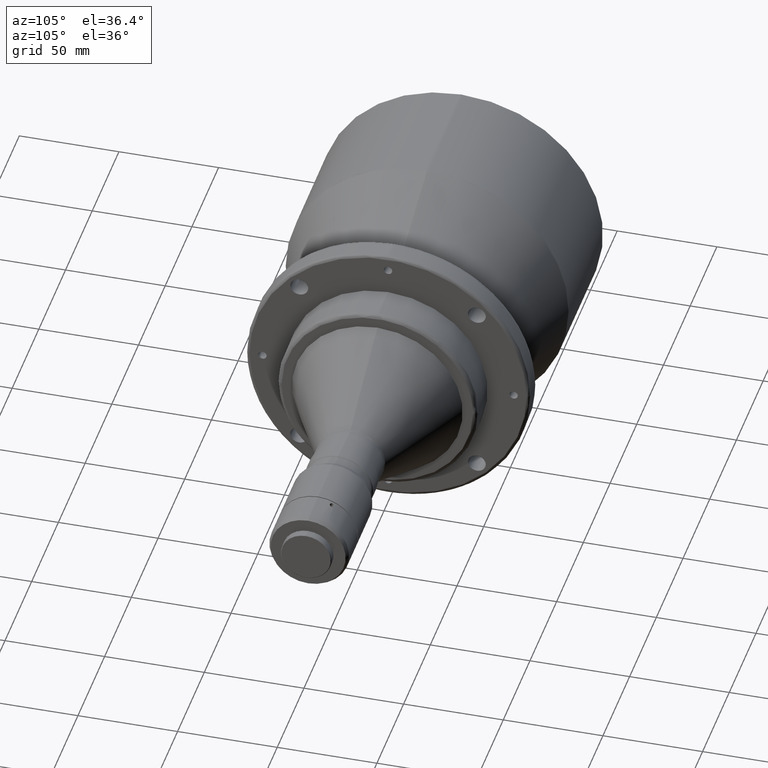
[diagram: clean part render]
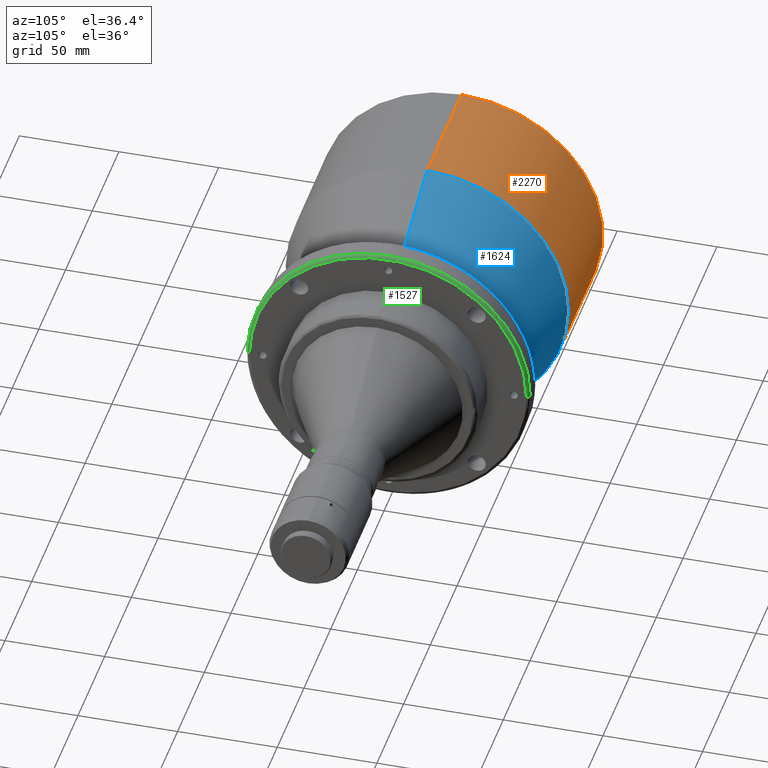
[diagram: same view with three faces highlighted in distinct colors, each labeled with its STEP entity id]
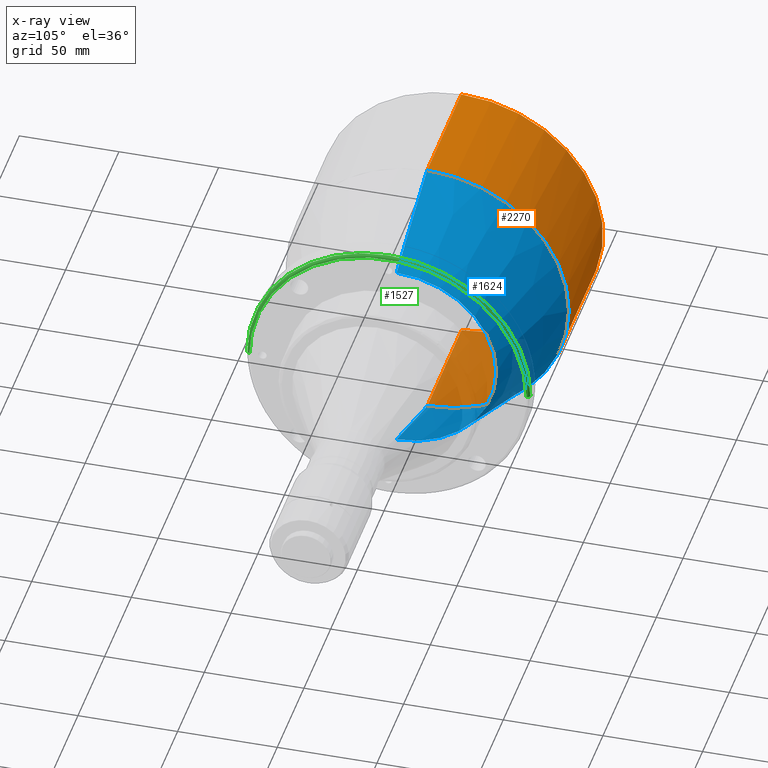
[diagram: x-ray of the same camera — body ghosted, the three highlighted faces saturated]
A machine part, auxiliary view with three faces highlighted in distinct colors.
The next image is the same camera in x-ray (body ghosted, the three faces saturated) — at least one of them is partly hidden behind the body in this view.
Their STEP definitions:

[orange] entity #2270 — the highlighted cylindrical surface (partial cylindrical patch) has radius 71 mm, axis along (1, 0, -0).
#47 = ORIENTED_EDGE ( 'NONE', *, *, #2451, .F. ) ;
#65 = CIRCLE ( 'NONE', #2495, 70.99999999999980100 ) ;
#147 = AXIS2_PLACEMENT_3D ( 'NONE', #4120, #3049, #3019 ) ;
#208 = CARTESIAN_POINT ( 'NONE',  ( -145.0500000000000100, 0.0000000000000000000, 0.0000000000000000000 ) ) ;
#415 = CIRCLE ( 'NONE', #147, 71.00000000000001400 ) ;
#449 = CARTESIAN_POINT ( 'NONE',  ( -145.0500000000000100, 8.694992273946208100E-015, 71.00000000000001400 ) ) ;
#552 = CARTESIAN_POINT ( 'NONE',  ( -145.0500000000000100, 8.694992273946208100E-015, 71.00000000000001400 ) ) ;
#571 = VECTOR ( 'NONE', #1230, 1000.000000000000000 ) ;
#643 = VERTEX_POINT ( 'NONE', #449 ) ;
#644 = CARTESIAN_POINT ( 'NONE',  ( -81.04632698077006100, 70.99999999999992900, -6.375347618440046200E-009 ) ) ;
#761 = ORIENTED_EDGE ( 'NONE', *, *, #3431, .F. ) ;
#786 = ORIENTED_EDGE ( 'NONE', *, *, #1321, .T. ) ;
#1014 = DIRECTION ( 'NONE',  ( 1.000000000000000000, 0.0000000000000000000, -0.0000000000000000000 ) ) ;
#1203 = CARTESIAN_POINT ( 'NONE',  ( -145.0500000000000100, 0.0000000000000000000, -71.00000000000001400 ) ) ;
#1212 = LINE ( 'NONE', #3522, #4212 ) ;
#1230 = DIRECTION ( 'NONE',  ( 1.000000000000000000, 0.0000000000000000000, -0.0000000000000000000 ) ) ;
#1321 = EDGE_CURVE ( 'NONE', #643, #2931, #1595, .T. ) ;
#1363 = EDGE_CURVE ( 'NONE', #2990, #2509, #65, .T. ) ;
#1540 = FACE_OUTER_BOUND ( 'NONE', #3349, .T. ) ;
#1551 = DIRECTION ( 'NONE',  ( 1.000000000000000000, 0.0000000000000000000, -0.0000000000000000000 ) ) ;
#1561 = DIRECTION ( 'NONE',  ( 0.0000000000000000000, 0.0000000000000000000, -1.000000000000000000 ) ) ;
#1595 = LINE ( 'NONE', #552, #571 ) ;
#1656 = AXIS2_PLACEMENT_3D ( 'NONE', #4349, #3075, #3697 ) ;
#1672 = AXIS2_PLACEMENT_3D ( 'NONE', #208, #1014, #3065 ) ;
#2006 = VERTEX_POINT ( 'NONE', #1203 ) ;
#2018 = CIRCLE ( 'NONE', #1656, 70.99999999999980100 ) ;
#2254 = CARTESIAN_POINT ( 'NONE',  ( -81.04632698038683700, 0.0000000000000000000, 0.0000000000000000000 ) ) ;
#2270 = ADVANCED_FACE ( 'NONE', ( #1540 ), #3263, .T. ) ;
#2292 = CARTESIAN_POINT ( 'NONE',  ( -81.04632698038683700, 8.694992273946195500E-015, 70.99999999999980100 ) ) ;
#2451 = EDGE_CURVE ( 'NONE', #2509, #2931, #2018, .T. ) ;
#2495 = AXIS2_PLACEMENT_3D ( 'NONE', #2254, #1551, #1561 ) ;
#2509 = VERTEX_POINT ( 'NONE', #644 ) ;
#2885 = ORIENTED_EDGE ( 'NONE', *, *, #1363, .F. ) ;
#2890 = ORIENTED_EDGE ( 'NONE', *, *, #3863, .F. ) ;
#2931 = VERTEX_POINT ( 'NONE', #2292 ) ;
#2990 = VERTEX_POINT ( 'NONE', #3240 ) ;
#3019 = DIRECTION ( 'NONE',  ( 0.0000000000000000000, 1.000000000000000000, 0.0000000000000000000 ) ) ;
#3049 = DIRECTION ( 'NONE',  ( -1.000000000000000000, -0.0000000000000000000, -0.0000000000000000000 ) ) ;
#3065 = DIRECTION ( 'NONE',  ( 0.0000000000000000000, 0.0000000000000000000, -1.000000000000000000 ) ) ;
#3075 = DIRECTION ( 'NONE',  ( 1.000000000000000000, -0.0000000000000000000, -0.0000000000000000000 ) ) ;
#3240 = CARTESIAN_POINT ( 'NONE',  ( -81.04632698038683700, 0.0000000000000000000, -70.99999999999980100 ) ) ;
#3263 = CYLINDRICAL_SURFACE ( 'NONE', #1672, 71.00000000000001400 ) ;
#3349 = EDGE_LOOP ( 'NONE', ( #761, #786, #47, #2885, #2890 ) ) ;
#3431 = EDGE_CURVE ( 'NONE', #643, #2006, #415, .T. ) ;
#3522 = CARTESIAN_POINT ( 'NONE',  ( -145.0500000000000100, 0.0000000000000000000, -71.00000000000001400 ) ) ;
#3697 = DIRECTION ( 'NONE',  ( 0.0000000000000000000, 0.0000000000000000000, -1.000000000000000000 ) ) ;
#3863 = EDGE_CURVE ( 'NONE', #2006, #2990, #1212, .T. ) ;
#3881 = DIRECTION ( 'NONE',  ( 1.000000000000000000, 0.0000000000000000000, -0.0000000000000000000 ) ) ;
#4120 = CARTESIAN_POINT ( 'NONE',  ( -145.0500000000000100, 0.0000000000000000000, 0.0000000000000000000 ) ) ;
#4212 = VECTOR ( 'NONE', #3881, 1000.000000000000000 ) ;
#4349 = CARTESIAN_POINT ( 'NONE',  ( -81.04632698038683700, 0.0000000000000000000, 0.0000000000000000000 ) ) ;

[blue] entity #1624 — the highlighted conical surface has half-angle 20 deg.
#2 = CARTESIAN_POINT ( 'NONE',  ( -23.57606043000000500, 6.141200959520356300E-015, -50.14671139300000400 ) ) ;
#11 = LINE ( 'NONE', #2, #3476 ) ;
#20 = DIRECTION ( 'NONE',  ( 0.0000000000000000000, 0.0000000000000000000, 1.000000000000000000 ) ) ;
#78 = CARTESIAN_POINT ( 'NONE',  ( -23.57606042939870900, 0.0000000000000000000, 50.14671139278115000 ) ) ;
#86 = CARTESIAN_POINT ( 'NONE',  ( -23.57606042939851300, 50.14671139235358800, 0.0000000000000000000 ) ) ;
#90 = DIRECTION ( 'NONE',  ( 8.302311810073150000E-016, -1.000000000000000000, 0.0000000000000000000 ) ) ;
#122 = ORIENTED_EDGE ( 'NONE', *, *, #3597, .F. ) ;
#249 = AXIS2_PLACEMENT_3D ( 'NONE', #2393, #2053, #20 ) ;
#302 = DIRECTION ( 'NONE',  ( -1.000000000000000000, 0.0000000000000000000, 3.459296587562589900E-017 ) ) ;
#380 = AXIS2_PLACEMENT_3D ( 'NONE', #782, #810, #90 ) ;
#460 = CIRCLE ( 'NONE', #380, 50.14671139300000400 ) ;
#569 = VECTOR ( 'NONE', #3220, 1000.000000000000100 ) ;
#758 = EDGE_CURVE ( 'NONE', #3457, #2788, #4228, .T. ) ;
#776 = AXIS2_PLACEMENT_3D ( 'NONE', #4263, #4293, #1288 ) ;
#782 = CARTESIAN_POINT ( 'NONE',  ( -23.57606043000004400, 0.0000000000000000000, 0.0000000000000000000 ) ) ;
#791 = ORIENTED_EDGE ( 'NONE', *, *, #2939, .F. ) ;
#810 = DIRECTION ( 'NONE',  ( 1.000000000000000000, -0.0000000000000000000, -0.0000000000000000000 ) ) ;
#836 = VERTEX_POINT ( 'NONE', #1715 ) ;
#1065 = CARTESIAN_POINT ( 'NONE',  ( -80.70430683760662300, 70.93969262079261300, -7.274987087195423400E-009 ) ) ;
#1274 = DIRECTION ( 'NONE',  ( 5.868838993407026700E-016, -1.000000000000000000, 0.0000000000000000000 ) ) ;
#1288 = DIRECTION ( 'NONE',  ( 5.868838993407026700E-016, -1.000000000000000000, 0.0000000000000000000 ) ) ;
#1414 = VERTEX_POINT ( 'NONE', #3276 ) ;
#1624 = ADVANCED_FACE ( 'NONE', ( #2278 ), #1959, .T. ) ;
#1715 = CARTESIAN_POINT ( 'NONE',  ( -80.70430683700003300, 0.0000000000000000000, 70.93969262100004900 ) ) ;
#1729 = VERTEX_POINT ( 'NONE', #1065 ) ;
#1932 = CARTESIAN_POINT ( 'NONE',  ( -80.70430683700003300, 0.0000000000000000000, 0.0000000000000000000 ) ) ;
#1959 = CONICAL_SURFACE ( 'NONE', #249, 50.14671139300000400, 0.3490658503992817900 ) ;
#2030 = EDGE_CURVE ( 'NONE', #3457, #836, #3637, .T. ) ;
#2053 = DIRECTION ( 'NONE',  ( -1.000000000000000000, 0.0000000000000000000, 0.0000000000000000000 ) ) ;
#2091 = EDGE_CURVE ( 'NONE', #836, #1729, #4318, .T. ) ;
#2136 = ORIENTED_EDGE ( 'NONE', *, *, #758, .T. ) ;
#2186 = AXIS2_PLACEMENT_3D ( 'NONE', #1932, #3928, #1274 ) ;
#2278 = FACE_OUTER_BOUND ( 'NONE', #3194, .T. ) ;
#2393 = CARTESIAN_POINT ( 'NONE',  ( -23.57606043000000500, 0.0000000000000000000, 0.0000000000000000000 ) ) ;
#2534 = EDGE_CURVE ( 'NONE', #3136, #1414, #11, .T. ) ;
#2596 = CARTESIAN_POINT ( 'NONE',  ( -23.57606043000004400, 6.141200959520357900E-015, -50.14671139300001800 ) ) ;
#2609 = ORIENTED_EDGE ( 'NONE', *, *, #2091, .F. ) ;
#2638 = AXIS2_PLACEMENT_3D ( 'NONE', #3685, #302, #2683 ) ;
#2683 = DIRECTION ( 'NONE',  ( 0.0000000000000000000, 0.0000000000000000000, 1.000000000000000000 ) ) ;
#2788 = VERTEX_POINT ( 'NONE', #86 ) ;
#2863 = CIRCLE ( 'NONE', #2186, 70.93969262100003400 ) ;
#2939 = EDGE_CURVE ( 'NONE', #1729, #1414, #2863, .T. ) ;
#3048 = DIRECTION ( 'NONE',  ( -0.9396926207857662100, 4.188538737681777900E-017, -0.3420201433260595100 ) ) ;
#3136 = VERTEX_POINT ( 'NONE', #2596 ) ;
#3190 = CARTESIAN_POINT ( 'NONE',  ( -23.57606043000000500, 0.0000000000000000000, 50.14671139300000400 ) ) ;
#3194 = EDGE_LOOP ( 'NONE', ( #122, #3713, #791, #2609, #4041, #2136 ) ) ;
#3220 = DIRECTION ( 'NONE',  ( -0.9396926207857662100, 0.0000000000000000000, 0.3420201433260595100 ) ) ;
#3276 = CARTESIAN_POINT ( 'NONE',  ( -80.70430683700003300, 8.687606750080481700E-015, -70.93969262100004900 ) ) ;
#3457 = VERTEX_POINT ( 'NONE', #78 ) ;
#3476 = VECTOR ( 'NONE', #3048, 1000.000000000000100 ) ;
#3597 = EDGE_CURVE ( 'NONE', #3136, #2788, #460, .T. ) ;
#3637 = LINE ( 'NONE', #3190, #569 ) ;
#3685 = CARTESIAN_POINT ( 'NONE',  ( -23.57606042939871200, 0.0000000000000000000, 0.0000000000000000000 ) ) ;
#3713 = ORIENTED_EDGE ( 'NONE', *, *, #2534, .T. ) ;
#3928 = DIRECTION ( 'NONE',  ( -1.000000000000000000, 0.0000000000000000000, 0.0000000000000000000 ) ) ;
#4041 = ORIENTED_EDGE ( 'NONE', *, *, #2030, .F. ) ;
#4228 = CIRCLE ( 'NONE', #2638, 50.14671139235364400 ) ;
#4263 = CARTESIAN_POINT ( 'NONE',  ( -80.70430683700003300, 0.0000000000000000000, 0.0000000000000000000 ) ) ;
#4293 = DIRECTION ( 'NONE',  ( -1.000000000000000000, 0.0000000000000000000, 0.0000000000000000000 ) ) ;
#4318 = CIRCLE ( 'NONE', #776, 70.93969262100003400 ) ;

[green] entity #1527 — the highlighted face is a freeform B-spline surface patch.
#54 = CARTESIAN_POINT ( 'NONE',  ( -7.550000000000000700, 63.95429950287173400, 27.23775621173142600 ) ) ;
#67 = CARTESIAN_POINT ( 'NONE',  ( -7.550000000000000700, 68.90720405759661600, 9.058214138124242300 ) ) ;
#77 = CARTESIAN_POINT ( 'NONE',  ( -7.549999999999999800, 53.78308353698385200, 44.04662492312582600 ) ) ;
#84 = CARTESIAN_POINT ( 'NONE',  ( -7.550000000000000700, 59.42941193953786400, 36.03326317694079300 ) ) ;
#99 = CARTESIAN_POINT ( 'NONE',  ( -7.549999999999999800, 68.06592874925625800, 14.04578603505306100 ) ) ;
#112 = CARTESIAN_POINT ( 'NONE',  ( -7.550000000000000700, 18.30477206436072300, 67.04779601048049600 ) ) ;
#127 = CARTESIAN_POINT ( 'NONE',  ( -7.549999999999997200, 33.22327052001399700, 61.04517979988700200 ) ) ;
#140 = CARTESIAN_POINT ( 'NONE',  ( -7.550000000000000700, 21.86129115416849100, 65.99883956362266700 ) ) ;
#155 = CARTESIAN_POINT ( 'NONE',  ( -7.550000000000000700, 38.46907077489538600, 57.89805799413041900 ) ) ;
#171 = CARTESIAN_POINT ( 'NONE',  ( -7.549999999999999800, 40.03791677179214000, 56.80899079802440400 ) ) ;
#174 = DIRECTION ( 'NONE',  ( 2.443272501375784200E-017, 1.000000000000000000, 0.0000000000000000000 ) ) ;
#185 = CARTESIAN_POINT ( 'NONE',  ( -7.550000000000001600, -8.294447970838186600, 69.00351358834355200 ) ) ;
#197 = CARTESIAN_POINT ( 'NONE',  ( -7.550000000000000700, -31.63417699425959700, 61.88489750263829600 ) ) ;
#210 = CARTESIAN_POINT ( 'NONE',  ( -7.549999999999999800, -20.51574973066741900, 66.42941320202811500 ) ) ;
#222 = CARTESIAN_POINT ( 'NONE',  ( -7.550000000000000700, -15.88732362170667400, 67.66144867010928000 ) ) ;
#237 = CARTESIAN_POINT ( 'NONE',  ( -7.550000000000000700, -8.475529838048270600, 68.98150071209028100 ) ) ;
#252 = CARTESIAN_POINT ( 'NONE',  ( -7.550000000000000700, -64.23876230954549300, 26.53454522249170100 ) ) ;
#261 = CARTESIAN_POINT ( 'NONE',  ( -7.557493752000000100, -69.35024987500000300, 138.7004997500000100 ) ) ;
#269 = CARTESIAN_POINT ( 'NONE',  ( -7.550000000000001600, -59.32118066688163100, 36.21116779202185400 ) ) ;
#288 = CARTESIAN_POINT ( 'NONE',  ( -7.549999999999998900, -67.32429834191785300, 17.29471601111683700 ) ) ;
#315 = CARTESIAN_POINT ( 'NONE',  ( -7.557493752000000100, -69.35024987500000300, 0.0000000000000000000 ) ) ;
#327 = CARTESIAN_POINT ( 'NONE',  ( -7.550000000000003400, -66.70326019980493000, 19.51732346155052500 ) ) ;
#384 = CARTESIAN_POINT ( 'NONE',  ( -7.549999999999999800, 69.05313191440346500, 7.885421235342117400 ) ) ;
#390 = DIRECTION ( 'NONE',  ( 2.443272501375784200E-017, 1.000000000000000000, 0.0000000000000000000 ) ) ;
#395 = CARTESIAN_POINT ( 'NONE',  ( -7.549999999999998000, 59.51607179965938600, 35.89003917368981400 ) ) ;
#408 = CARTESIAN_POINT ( 'NONE',  ( -7.550000000000000700, 68.92910199529274000, 8.890741493224366500 ) ) ;
#416 = B_SPLINE_CURVE_WITH_KNOTS ( 'NONE', 3,
 ( #988, #3678, #1682, #4026, #384, #1046, #408, #67, #3798, #1448, #1077, #747, #2457, #3088, #1089, #2804, #1437, #99, #2782, #3408, #3129, #3447, #2793, #2767, #3459, #433, #1786, #4141, #3783, #1775, #3774, #734, #3420, #2133, #2471, #1738, #419, #711, #4126, #1764, #54, #2082, #3749, #4114, #1423, #3118, #2817, #2121, #2443, #1411, #3099, #1101, #1460, #395, #4088, #84, #2418, #1064, #3762, #1753, #3435, #4100, #2095, #2431, #722, #3109, #2108, #77, #1172, #2869, #1516, #805, #472, #2514, #3864, #2170, #3192, #1483, #778, #3536, #3825, #3164, #2146, #4165, #4201, #1529, #2828, #1155, #171, #2853, #1141, #3177, #1853, #155, #1815, #2187, #3474, #127, #3516, #4154, #3504, #1114, #2200, #2482, #3848, #1837, #2156, #2498, #2841, #4191, #2545, #140, #1825, #112, #457, #3490, #2529, #444, #502, #763, #487, #3155, #818, #4181, #3142, #1471, #3812, #1801, #792, #1128, #1498, #3834, #185, #237, #2262, #1570, #2557, #222, #4218, #3239, #872, #3938, #2232, #210, #3222, #1258, #1583, #1930, #2587, #2903, #3926, #2889, #1915, #197, #851, #1205, #905, #1238, #4234, #2575, #3207, #534, #1190, #3910, #1900, #3252, #1885, #522, #888, #4265, #2919, #3267, #544, #3564, #1222, #3895, #4247, #3608, #3593, #2248, #2600, #560, #1597, #2935, #3577, #2946, #4279, #2276, #2614, #835, #3551, #1544, #3877, #1871, #2215, #1556, #4356, #2995, #1613, #1273, #1947, #269, #572, #2686, #2290, #634, #1345, #1999, #2341, #4296, #982, #3348, #3654, #1965, #3690, #252, #3624, #950, #1645, #936, #3972, #1326, #617, #3010, #3955, #2631, #1310, #3299, #2668, #327, #3671, #1676, #288, #592, #1660, #2963, #4003, #2305, #2979, #1291, #3026, #3635, #3317, #919, #3989, #4308, #3284, #1982, #4325, #967, #2650, #1628, #3332 ),
 .UNSPECIFIED., .F., .F.,
 ( 4, 1, 1, 1, 1, 1, 1, 1, 2, 2, 1, 1, 1, 1, 1, 2, 2, 1, 1, 1, 1, 1, 2, 2, 1, 1, 1, 1, 1, 2, 2, 1, 1, 1, 1, 1, 2, 2, 1, 1, 1, 1, 1, 2, 2, 1, 1, 1, 1, 1, 2, 2, 1, 1, 1, 1, 1, 2, 2, 1, 1, 1, 1, 1, 2, 2, 1, 1, 1, 1, 1, 2, 2, 1, 1, 1, 1, 1, 2, 2, 1, 1, 1, 1, 2, 2, 1, 1, 1, 1, 2, 2, 1, 1, 1, 2, 2, 2, 1, 1, 1, 2, 2, 1, 1, 1, 1, 2, 2, 1, 1, 1, 1, 2, 2, 1, 1, 1, 1, 1, 2, 2, 1, 1, 1, 1, 1, 2, 2, 1, 1, 1, 1, 1, 2, 2, 1, 1, 1, 1, 1, 2, 2, 1, 1, 1, 1, 1, 2, 2, 1, 1, 1, 1, 1, 2, 2, 1, 1, 1, 1, 1, 2, 2, 1, 1, 1, 1, 1, 2, 2, 1, 1, 1, 1, 1, 2, 2, 1, 1, 1, 1, 1, 2, 2, 1, 1, 1, 1, 1, 1, 2, 2, 4 ),
 ( 0.0000000000000000000, 0.03125000000000508600, 0.04687500000000763300, 0.05468750000000890300, 0.05859375000000949900, 0.06054687500000981900, 0.06152343750000999900, 0.06201171875001012400, 0.06225585937501016500, 0.06250000000001021400, 0.07812500000001268400, 0.08593750000001394700, 0.08984375000001458600, 0.09179687500001491900, 0.09277343750001508500, 0.09326171875001518200, 0.09375000000001527900, 0.1093750000000187200, 0.1171875000000204000, 0.1210937500000212200, 0.1230468750000216600, 0.1240234375000218300, 0.1245117187500219000, 0.1250000000000219800, 0.1406250000000234000, 0.1484375000000240600, 0.1523437500000244200, 0.1542968750000246500, 0.1552734375000247600, 0.1557617187500247900, 0.1562500000000248400, 0.1718750000000262000, 0.1796875000000268700, 0.1835937500000271700, 0.1855468750000273100, 0.1865234375000274200, 0.1870117187500274500, 0.1875000000000274500, 0.2031250000000278100, 0.2109375000000279800, 0.2148437500000280900, 0.2167968750000280900, 0.2177734375000281200, 0.2182617187500280900, 0.2187500000000280600, 0.2343750000000288400, 0.2421875000000292800, 0.2460937500000295000, 0.2480468750000296200, 0.2490234375000296400, 0.2495117187500296400, 0.2500000000000296400, 0.2656250000000294800, 0.2734375000000293700, 0.2773437500000293100, 0.2792968750000292500, 0.2802734375000292500, 0.2807617187500292500, 0.2812500000000293100, 0.2968750000000295900, 0.3046875000000297500, 0.3085937500000299200, 0.3105468750000300300, 0.3115234375000300300, 0.3120117187500300300, 0.3125000000000299800, 0.3281250000000305900, 0.3359375000000308100, 0.3398437500000309200, 0.3417968750000310300, 0.3427734375000310900, 0.3432617187500310900, 0.3437500000000311400, 0.3593750000000331400, 0.3671875000000340800, 0.3710937500000345300, 0.3730468750000347500, 0.3740234375000348600, 0.3745117187500349200, 0.3750000000000349700, 0.3906250000000373000, 0.3984375000000385200, 0.4023437500000391400, 0.4042968750000394100, 0.4052734375000395200, 0.4062500000000396300, 0.4218750000000418000, 0.4296875000000429100, 0.4335937500000434700, 0.4355468750000438000, 0.4365234375000439600, 0.4375000000000441300, 0.4531250000000468000, 0.4609375000000480700, 0.4648437500000487400, 0.4667968750000490700, 0.4687500000000493500, 0.5000000000000548500, 0.5156250000000576200, 0.5234375000000589500, 0.5273437500000596200, 0.5292968750000599500, 0.5312500000000602900, 0.5468750000000629500, 0.5546875000000641700, 0.5585937500000648400, 0.5605468750000651700, 0.5615234375000652800, 0.5625000000000655000, 0.5781250000000683900, 0.5859375000000698300, 0.5898437500000706100, 0.5917968750000709400, 0.5927734375000710500, 0.5937500000000711700, 0.6093750000000732700, 0.6171875000000743800, 0.6210937500000749400, 0.6230468750000750500, 0.6240234375000751600, 0.6245117187500752700, 0.6250000000000752700, 0.6406250000000760500, 0.6484375000000764900, 0.6523437500000766100, 0.6542968750000767200, 0.6552734375000768300, 0.6557617187500768300, 0.6562500000000769400, 0.6718750000000771600, 0.6796875000000771600, 0.6835937500000772700, 0.6855468750000772700, 0.6865234375000772700, 0.6870117187500772700, 0.6875000000000772700, 0.7031250000000761600, 0.7109375000000755000, 0.7148437500000751600, 0.7167968750000749400, 0.7177734375000748300, 0.7182617187500747200, 0.7187500000000746100, 0.7343750000000712800, 0.7421875000000695000, 0.7460937500000687200, 0.7480468750000683900, 0.7490234375000681700, 0.7495117187500681700, 0.7500000000000680600, 0.7656250000000657300, 0.7734375000000646100, 0.7773437500000640600, 0.7792968750000637300, 0.7802734375000636200, 0.7807617187500635000, 0.7812500000000632800, 0.7968750000000590600, 0.8046875000000570700, 0.8085937500000559600, 0.8105468750000555100, 0.8115234375000552900, 0.8120117187500550700, 0.8125000000000549600, 0.8281250000000497400, 0.8359375000000470700, 0.8398437500000458500, 0.8417968750000451900, 0.8427734375000449600, 0.8432617187500447400, 0.8437500000000446300, 0.8593750000000399700, 0.8671875000000376400, 0.8710937500000365300, 0.8730468750000359700, 0.8740234375000356400, 0.8745117187500355300, 0.8750000000000354200, 0.8906250000000288700, 0.8984375000000255400, 0.9023437500000238700, 0.9042968750000230900, 0.9052734375000226500, 0.9057617187500225400, 0.9062500000000224300, 0.9218750000000162100, 0.9296875000000132100, 0.9335937500000117700, 0.9355468750000109900, 0.9365234375000105500, 0.9370117187500104400, 0.9372558593750103300, 0.9375000000000102100, 1.000000000000000000 ),
 .UNSPECIFIED. ) ;
#419 = CARTESIAN_POINT ( 'NONE',  ( -7.550000000000000700, 64.93392391623731900, 24.77572044679442700 ) ) ;
#433 = CARTESIAN_POINT ( 'NONE',  ( -7.550000000000000700, 66.82930120887947100, 19.08183642733719100 ) ) ;
#444 = CARTESIAN_POINT ( 'NONE',  ( -7.550000000000000700, 17.19471154812128700, 67.33943761591639500 ) ) ;
#448 = EDGE_CURVE ( 'NONE', #585, #1511, #2891, .T. ) ;
#457 = CARTESIAN_POINT ( 'NONE',  ( -7.550000000000000700, 17.70695552318840900, 67.20691159242092300 ) ) ;
#472 = CARTESIAN_POINT ( 'NONE',  ( -7.550000000000000700, 51.14331039656100600, 47.05967585577784700 ) ) ;
#487 = CARTESIAN_POINT ( 'NONE',  ( -7.550000000000000700, 11.14135281391699900, 68.60781726397731000 ) ) ;
#502 = CARTESIAN_POINT ( 'NONE',  ( -7.550000000000000700, 15.71538446372094600, 67.71515200287827000 ) ) ;
#522 = CARTESIAN_POINT ( 'NONE',  ( -7.550000000000000700, -39.53966341634120600, 57.15650983350144500 ) ) ;
#533 = EDGE_LOOP ( 'NONE', ( #4335, #1137, #4195, #2906, #2936 ) ) ;
#534 = CARTESIAN_POINT ( 'NONE',  ( -7.550000000000000700, -37.62300251807261700, 58.44275675383601500 ) ) ;
#536 = VERTEX_POINT ( 'NONE', #2548 ) ;
#544 = CARTESIAN_POINT ( 'NONE',  ( -7.550000000000002500, -45.27015428234319200, 52.73432771560868600 ) ) ;
#560 = CARTESIAN_POINT ( 'NONE',  ( -7.549999999999998900, -50.67197046115736500, 47.56725663738284700 ) ) ;
#572 = CARTESIAN_POINT ( 'NONE',  ( -7.549999999999998900, -59.35795304108843600, 36.15085882400057900 ) ) ;
#581 = CARTESIAN_POINT ( 'NONE',  ( -7.455169365999999800, -70.37008064800001300, 140.7401612959999700 ) ) ;
#585 = VERTEX_POINT ( 'NONE', #2504 ) ;
#592 = CARTESIAN_POINT ( 'NONE',  ( -7.550000000000001600, -67.69106689386431700, 15.76466445934577400 ) ) ;
#595 = CARTESIAN_POINT ( 'NONE',  ( -8.179919352000000600, -71.09483063399999000, 142.1896612679999200 ) ) ;
#617 = CARTESIAN_POINT ( 'NONE',  ( -7.550000000000001600, -65.23328529726039400, 23.99545343952254900 ) ) ;
#627 = CARTESIAN_POINT ( 'NONE',  ( -7.557493752000000100, 69.35024987500000300, 0.0000000000000000000 ) ) ;
#634 = CARTESIAN_POINT ( 'NONE',  ( -7.550000000000000700, -60.75271028035390200, 33.78417080360046000 ) ) ;
#642 = CARTESIAN_POINT ( 'NONE',  ( -7.455169365999999800, 70.37008064800001300, 140.7401612959999700 ) ) ;
#711 = CARTESIAN_POINT ( 'NONE',  ( -7.550000000000002500, 64.91261266040024200, 24.83150326316631900 ) ) ;
#722 = CARTESIAN_POINT ( 'NONE',  ( -7.550000000000001600, 55.64236188364857600, 41.64347186052036400 ) ) ;
#734 = CARTESIAN_POINT ( 'NONE',  ( -7.549999999999998000, 66.02339109603205700, 21.74307443268780900 ) ) ;
#743 = AXIS2_PLACEMENT_3D ( 'NONE', #1771, #1465, #390 ) ;
#747 = CARTESIAN_POINT ( 'NONE',  ( -7.550000000000001600, 68.88671056685917900, 9.212560375546258800 ) ) ;
#763 = CARTESIAN_POINT ( 'NONE',  ( -7.550000000000000700, 13.61440410439956300, 68.18006284679940200 ) ) ;
#778 = CARTESIAN_POINT ( 'NONE',  ( -7.549999999999999800, 46.51364306118424700, 51.64205296140062300 ) ) ;
#792 = CARTESIAN_POINT ( 'NONE',  ( -7.550000000000002500, -3.615260547351649500, 69.43241122376838300 ) ) ;
#805 = CARTESIAN_POINT ( 'NONE',  ( -7.549999999999999800, 51.21870587700937700, 46.97769388678901900 ) ) ;
#812 = CARTESIAN_POINT ( 'NONE',  ( -8.171320343384646600, -70.99999999954468400, 0.0000000000000000000 ) ) ;
#818 = CARTESIAN_POINT ( 'NONE',  ( -7.550000000000000700, 9.365889867632290600, 68.86627120392353200 ) ) ;
#835 = CARTESIAN_POINT ( 'NONE',  ( -7.550000000000000700, -54.97108579744279000, 42.52746396887856400 ) ) ;
#851 = CARTESIAN_POINT ( 'NONE',  ( -7.550000000000000700, -32.17096554415351100, 61.60626379771000700 ) ) ;
#858 = CARTESIAN_POINT ( 'NONE',  ( -7.549999999963315400, 69.49999998662580900, 0.0000000000000000000 ) ) ;
#872 = CARTESIAN_POINT ( 'NONE',  ( -7.549999999999999800, -16.93357724024665200, 67.40557788604076000 ) ) ;
#888 = CARTESIAN_POINT ( 'NONE',  ( -7.550000000000001600, -40.63824399967585100, 56.39559993744864400 ) ) ;
#905 = CARTESIAN_POINT ( 'NONE',  ( -7.549999999999999800, -32.55323281091799000, 61.40471341072463900 ) ) ;
#919 = CARTESIAN_POINT ( 'NONE',  ( -7.550000000000001600, -68.78330853499741700, 9.959155895538240000 ) ) ;
#936 = CARTESIAN_POINT ( 'NONE',  ( -7.549999999999997200, -64.84580738884166400, 25.00544284902024500 ) ) ;
#949 = CIRCLE ( 'NONE', #743, 71.00000000000001400 ) ;
#950 = CARTESIAN_POINT ( 'NONE',  ( -7.549999999999999800, -64.73144780726130400, 25.30054592611332600 ) ) ;
#967 = CARTESIAN_POINT ( 'NONE',  ( -7.549999999999999800, -68.88335407516876800, 9.237622243978490700 ) ) ;
#982 = CARTESIAN_POINT ( 'NONE',  ( -7.549999999999997200, -62.41311369194168200, 30.57538663684061600 ) ) ;
#988 = CARTESIAN_POINT ( 'NONE',  ( -7.549999999963315400, 69.49999998662580900, 0.0000000000000000000 ) ) ;
#1046 = CARTESIAN_POINT ( 'NONE',  ( -7.550000000000000700, 68.97184676967552300, 8.555727005069895700 ) ) ;
#1064 = CARTESIAN_POINT ( 'NONE',  ( -7.549999999999999800, 58.80791969560512200, 37.05612595005664600 ) ) ;
#1077 = CARTESIAN_POINT ( 'NONE',  ( -7.550000000000001600, 68.88815598007785500, 9.201743790140904300 ) ) ;
#1089 = CARTESIAN_POINT ( 'NONE',  ( -7.549999999999999800, 68.31811532249385300, 12.77494407880212900 ) ) ;
#1101 = CARTESIAN_POINT ( 'NONE',  ( -7.550000000000000700, 59.87674128816094300, 35.28671026681834600 ) ) ;
#1114 = CARTESIAN_POINT ( 'NONE',  ( -7.550000000000000700, 32.74401390421487400, 61.30319222040729700 ) ) ;
#1128 = CARTESIAN_POINT ( 'NONE',  ( -7.549999999999998900, -6.136866941027706800, 69.23521957234189000 ) ) ;
#1137 = ORIENTED_EDGE ( 'NONE', *, *, #1442, .F. ) ;
#1141 = CARTESIAN_POINT ( 'NONE',  ( -7.550000000000000700, 39.70603994987516200, 57.04105497917346700 ) ) ;
#1149 = CARTESIAN_POINT ( 'NONE',  ( -7.550000000455329800, -70.37867965661536100, 0.0000000000000000000 ) ) ;
#1155 = CARTESIAN_POINT ( 'NONE',  ( -7.550000000000000700, 40.50043992246282400, 56.48141186531527300 ) ) ;
#1160 = EDGE_CURVE ( 'NONE', #1511, #3226, #949, .T. ) ;
#1172 = CARTESIAN_POINT ( 'NONE',  ( -7.550000000000000700, 52.43335090422428400, 45.62472279083021200 ) ) ;
#1190 = CARTESIAN_POINT ( 'NONE',  ( -7.550000000000000700, -38.60239017766829800, 57.79537092849475500 ) ) ;
#1205 = CARTESIAN_POINT ( 'NONE',  ( -7.549999999999999800, -32.43865791630758400, 61.46540919009311900 ) ) ;
#1222 = CARTESIAN_POINT ( 'NONE',  ( -7.550000000000001600, -45.57644664138912600, 52.46941075761615300 ) ) ;
#1232 = CARTESIAN_POINT ( 'NONE',  ( -9.049999999827273100, -71.00000000001530500, -2.184351513688277200E-008 ) ) ;
#1238 = CARTESIAN_POINT ( 'NONE',  ( -7.550000000000000700, -32.62958265004910200, 61.36417633137645600 ) ) ;
#1248 = CARTESIAN_POINT ( 'NONE',  ( -9.049999999827271300, 71.00000000001530500, -6.375347618440046200E-009 ) ) ;
#1258 = CARTESIAN_POINT ( 'NONE',  ( -7.549999999999998000, -24.02052439701180500, 65.21875543154435200 ) ) ;
#1273 = CARTESIAN_POINT ( 'NONE',  ( -7.549999999999999800, -59.13662996556134700, 36.51224345144832700 ) ) ;
#1280 = FACE_OUTER_BOUND ( 'NONE', #533, .T. ) ;
#1290 = EDGE_CURVE ( 'NONE', #536, #3226, #1467, .T. ) ;
#1291 = CARTESIAN_POINT ( 'NONE',  ( -7.550000000000001600, -68.02282254857520600, 14.25293950921673800 ) ) ;
#1310 = CARTESIAN_POINT ( 'NONE',  ( -7.550000000000000700, -66.60193024560287300, 19.86095965005852200 ) ) ;
#1316 = CARTESIAN_POINT ( 'NONE',  ( -8.179919352000000600, 71.09483063400000400, 0.0000000000000000000 ) ) ;
#1326 = CARTESIAN_POINT ( 'NONE',  ( -7.550000000000001600, -64.88055797836213400, 24.91513710679531000 ) ) ;
#1345 = CARTESIAN_POINT ( 'NONE',  ( -7.550000000000000700, -61.63127606165156900, 32.13005594148581400 ) ) ;
#1411 = CARTESIAN_POINT ( 'NONE',  ( -7.550000000000002500, 61.26587452850977700, 32.84439853310107800 ) ) ;
#1423 = CARTESIAN_POINT ( 'NONE',  ( -7.549999999999998000, 62.56872603517408700, 30.25576652535277900 ) ) ;
#1437 = CARTESIAN_POINT ( 'NONE',  ( -7.550000000000000700, 68.10320550343279000, 13.86444423086645200 ) ) ;
#1439 = CARTESIAN_POINT ( 'NONE',  ( -9.050000000000002500, 0.0000000000000000000, 0.0000000000000000000 ) ) ;
#1442 = EDGE_CURVE ( 'NONE', #585, #3849, #3532, .T. ) ;
#1448 = CARTESIAN_POINT ( 'NONE',  ( -7.549999999999998900, 68.89134682242780600, 9.177823245533462100 ) ) ;
#1460 = CARTESIAN_POINT ( 'NONE',  ( -7.550000000000000700, 59.63688990375614200, 35.68925171702412100 ) ) ;
#1465 = DIRECTION ( 'NONE',  ( 1.000000000000000000, 0.0000000000000000000, 0.0000000000000000000 ) ) ;
#1467 =( BOUNDED_CURVE ( )  B_SPLINE_CURVE ( 3, ( #3830, #1149, #812, #1523 ),
 .UNSPECIFIED., .F., .F. ) 
 B_SPLINE_CURVE_WITH_KNOTS ( ( 4, 4 ),
 ( 0.06314145700000513300, 0.9368585430000009300 ),
 .UNSPECIFIED. ) 
 CURVE ( )  GEOMETRIC_REPRESENTATION_ITEM ( )  RATIONAL_B_SPLINE_CURVE ( ( 0.9565783021659896000, 0.7697947703959732200, 0.7697947703959745500, 0.9565783021659936000 ) ) 
 REPRESENTATION_ITEM ( '' )  );
#1471 = CARTESIAN_POINT ( 'NONE',  ( -7.549999999999999800, 5.780748179664455800, 69.31969382113145200 ) ) ;
#1483 = CARTESIAN_POINT ( 'NONE',  ( -7.550000000000000700, 47.31846151681777000, 50.91065762087873700 ) ) ;
#1498 = CARTESIAN_POINT ( 'NONE',  ( -7.549999999999999800, -7.395878824154515000, 69.10704226486933500 ) ) ;
#1511 = VERTEX_POINT ( 'NONE', #1618 ) ;
#1516 = CARTESIAN_POINT ( 'NONE',  ( -7.550000000000000700, 51.39414825081439600, 46.78600456098247000 ) ) ;
#1523 = CARTESIAN_POINT ( 'NONE',  ( -9.049999999827273100, -71.00000000001530500, -2.184351513688277200E-008 ) ) ;
#1527 = ADVANCED_FACE ( 'NONE', ( #1280 ), #3404, .T. ) ;
#1529 = CARTESIAN_POINT ( 'NONE',  ( -7.550000000000000700, 43.22434126095100000, 54.45046503878944600 ) ) ;
#1544 = CARTESIAN_POINT ( 'NONE',  ( -7.550000000000000700, -55.44372778771914800, 41.90766750105333200 ) ) ;
#1556 = CARTESIAN_POINT ( 'NONE',  ( -7.550000000000001600, -56.27795036572870700, 40.79608027016303100 ) ) ;
#1570 = CARTESIAN_POINT ( 'NONE',  ( -7.550000000000001600, -12.20477921564735400, 68.44644888567641800 ) ) ;
#1583 = CARTESIAN_POINT ( 'NONE',  ( -7.549999999999998900, -24.59965545193348300, 65.00124770496114500 ) ) ;
#1597 = CARTESIAN_POINT ( 'NONE',  ( -7.550000000000000700, -50.85761360045078300, 47.36838226933701200 ) ) ;
#1605 = CARTESIAN_POINT ( 'NONE',  ( -8.171320343384630600, 70.99999999954468400, 0.0000000000000000000 ) ) ;
#1613 = CARTESIAN_POINT ( 'NONE',  ( -7.550000000000000700, -58.87611249965988900, 36.93228734710793000 ) ) ;
#1618 = CARTESIAN_POINT ( 'NONE',  ( -9.050000000000002500, 8.694992273946208100E-015, 71.00000000000001400 ) ) ;
#1628 = CARTESIAN_POINT ( 'NONE',  ( -7.550000000000003400, -69.50000000069108800, 3.089059547351450200 ) ) ;
#1645 = CARTESIAN_POINT ( 'NONE',  ( -7.550000000000000700, -64.81162409747237500, 25.09402847309529200 ) ) ;
#1660 = CARTESIAN_POINT ( 'NONE',  ( -7.550000000000000700, -67.86335111320627800, 14.99680590199632800 ) ) ;
#1676 = CARTESIAN_POINT ( 'NONE',  ( -7.550000000000002500, -66.97186796037092900, 18.59647637618703800 ) ) ;
#1682 = CARTESIAN_POINT ( 'NONE',  ( -7.550000000000001600, 69.42311946971688000, 3.855836401247916700 ) ) ;
#1684 = CARTESIAN_POINT ( 'NONE',  ( -9.199750124999999600, -70.99250624800002600, 141.9850124960000000 ) ) ;
#1738 = CARTESIAN_POINT ( 'NONE',  ( -7.549999999999999800, 64.96583608042530500, 24.69202804745514300 ) ) ;
#1753 = CARTESIAN_POINT ( 'NONE',  ( -7.550000000000000700, 56.76676205824108500, 40.10419819759396600 ) ) ;
#1764 = CARTESIAN_POINT ( 'NONE',  ( -7.550000000000000700, 64.52865805035436600, 25.83270491764789200 ) ) ;
#1771 = CARTESIAN_POINT ( 'NONE',  ( -9.050000000000002500, 0.0000000000000000000, 0.0000000000000000000 ) ) ;
#1775 = CARTESIAN_POINT ( 'NONE',  ( -7.550000000000000700, 66.72835740673797000, 19.43134525118591700 ) ) ;
#1786 = CARTESIAN_POINT ( 'NONE',  ( -7.550000000000000700, 66.77488242229401300, 19.27097496467529700 ) ) ;
#1801 = CARTESIAN_POINT ( 'NONE',  ( -7.550000000000001600, -1.447741991476605200, 69.50001041610192900 ) ) ;
#1815 = CARTESIAN_POINT ( 'NONE',  ( -7.550000000000000700, 36.78277463030793400, 58.99527220314445200 ) ) ;
#1825 = CARTESIAN_POINT ( 'NONE',  ( -7.550000000000000700, 19.49606512424450600, 66.71609871014025800 ) ) ;
#1837 = CARTESIAN_POINT ( 'NONE',  ( -7.550000000000000700, 26.30171623621762600, 64.33258417830323600 ) ) ;
#1853 = CARTESIAN_POINT ( 'NONE',  ( -7.550000000000002500, 39.60745007961561700, 57.10955801923017100 ) ) ;
#1871 = CARTESIAN_POINT ( 'NONE',  ( -7.550000000000000700, -55.55541910673922200, 41.75939082263445800 ) ) ;
#1885 = CARTESIAN_POINT ( 'NONE',  ( -7.550000000000000700, -39.50392321830518200, 57.18121848518391200 ) ) ;
#1900 = CARTESIAN_POINT ( 'NONE',  ( -7.550000000000000700, -39.33114010659853200, 57.30029418289224500 ) ) ;
#1907 = CARTESIAN_POINT ( 'NONE',  ( -7.550000000455313800, 70.37867965661534700, 0.0000000000000000000 ) ) ;
#1915 = CARTESIAN_POINT ( 'NONE',  ( -7.549999999999999800, -30.55498467212885300, 62.42986287127330800 ) ) ;
#1930 = CARTESIAN_POINT ( 'NONE',  ( -7.550000000000000700, -24.84739547031603000, 64.90658538455284100 ) ) ;
#1947 = CARTESIAN_POINT ( 'NONE',  ( -7.550000000000000700, -59.26595544457595800, 36.30158583947178400 ) ) ;
#1965 = CARTESIAN_POINT ( 'NONE',  ( -7.550000000000000700, -62.91563227159602400, 29.54487361667978700 ) ) ;
#1982 = CARTESIAN_POINT ( 'NONE',  ( -7.550000000000000700, -68.87791433487009800, 9.278094791124999600 ) ) ;
#1999 = CARTESIAN_POINT ( 'NONE',  ( -7.550000000000000700, -62.05633455356221600, 31.29516667319355600 ) ) ;
#2007 = CARTESIAN_POINT ( 'NONE',  ( -7.557493752000000100, 69.35024987500000300, 138.7004997500000100 ) ) ;
#2082 = CARTESIAN_POINT ( 'NONE',  ( -7.550000000000002500, 63.23088223864688500, 28.85405032730245600 ) ) ;
#2095 = CARTESIAN_POINT ( 'NONE',  ( -7.550000000000000700, 55.74803226877907000, 41.50199408474695400 ) ) ;
#2108 = CARTESIAN_POINT ( 'NONE',  ( -7.549999999999999800, 54.88728895345813200, 42.65029620917312100 ) ) ;
#2121 = CARTESIAN_POINT ( 'NONE',  ( -7.550000000000000700, 62.48657759806354100, 30.42496847795116800 ) ) ;
#2133 = CARTESIAN_POINT ( 'NONE',  ( -7.549999999999999800, 65.18653997092273800, 24.10529068778819100 ) ) ;
#2146 = CARTESIAN_POINT ( 'NONE',  ( -7.550000000000000700, 45.75718667891718600, 52.31186587645788700 ) ) ;
#2156 = CARTESIAN_POINT ( 'NONE',  ( -7.549999999999998000, 25.74048193549773700, 64.55796106881175000 ) ) ;
#2170 = CARTESIAN_POINT ( 'NONE',  ( -7.549999999999998900, 50.19856076513482900, 48.08224704067178800 ) ) ;
#2187 = CARTESIAN_POINT ( 'NONE',  ( -7.550000000000001600, 34.76210365091272800, 60.18838946756817900 ) ) ;
#2200 = CARTESIAN_POINT ( 'NONE',  ( -7.550000000000001600, 31.48567272291544900, 61.97431955532389500 ) ) ;
#2215 = CARTESIAN_POINT ( 'NONE',  ( -7.550000000000001600, -55.57881405164113900, 41.72824749198500200 ) ) ;
#2232 = CARTESIAN_POINT ( 'NONE',  ( -7.550000000000000700, -18.47874896496858800, 67.01334496914425600 ) ) ;
#2248 = CARTESIAN_POINT ( 'NONE',  ( -7.549999999999999800, -49.54480206864032300, 48.74673856773765100 ) ) ;
#2262 = CARTESIAN_POINT ( 'NONE',  ( -7.550000000000000700, -10.07902977887858100, 68.78029002929311300 ) ) ;
#2276 = CARTESIAN_POINT ( 'NONE',  ( -7.550000000000000700, -53.02313755970912000, 44.95855932881417500 ) ) ;
#2290 = CARTESIAN_POINT ( 'NONE',  ( -7.550000000000000700, -59.95088452928207800, 35.17513152917909700 ) ) ;
#2305 = CARTESIAN_POINT ( 'NONE',  ( -7.550000000000000700, -68.00512639612834700, 14.33713650911545800 ) ) ;
#2341 = CARTESIAN_POINT ( 'NONE',  ( -7.550000000000000700, -62.26530769983300900, 30.87576407973873700 ) ) ;
#2347 = CARTESIAN_POINT ( 'NONE',  ( -8.179919352000000600, 71.09483063399999000, 142.1896612679999200 ) ) ;
#2418 = CARTESIAN_POINT ( 'NONE',  ( -7.550000000000001600, 59.41299434988406600, 36.06032877956435800 ) ) ;
#2431 = CARTESIAN_POINT ( 'NONE',  ( -7.550000000000000700, 55.68465681742750900, 41.58689874175817600 ) ) ;
#2443 = CARTESIAN_POINT ( 'NONE',  ( -7.550000000000000700, 62.00255059033168000, 31.41786264813985200 ) ) ;
#2457 = CARTESIAN_POINT ( 'NONE',  ( -7.550000000000002500, 68.77264765934273800, 10.06427756392244500 ) ) ;
#2471 = CARTESIAN_POINT ( 'NONE',  ( -7.549999999999999800, 65.03991475988976800, 24.49661855885985800 ) ) ;
#2482 = CARTESIAN_POINT ( 'NONE',  ( -7.550000000000001600, 29.62945001734599200, 62.89437664644705000 ) ) ;
#2498 = CARTESIAN_POINT ( 'NONE',  ( -7.550000000000002500, 25.49934572463019200, 64.65323566185415400 ) ) ;
#2504 = CARTESIAN_POINT ( 'NONE',  ( -9.049999999827271300, 71.00000000001530500, -6.375347618440046200E-009 ) ) ;
#2514 = CARTESIAN_POINT ( 'NONE',  ( -7.550000000000002500, 51.09300098922324200, 47.11429259083397600 ) ) ;
#2529 = CARTESIAN_POINT ( 'NONE',  ( -7.550000000000000700, 17.27906537018632300, 67.31784028999973700 ) ) ;
#2532 = DIRECTION ( 'NONE',  ( 1.000000000000000000, 0.0000000000000000000, 0.0000000000000000000 ) ) ;
#2545 = CARTESIAN_POINT ( 'NONE',  ( -7.550000000000000700, 23.85886759722859200, 65.29170678802958600 ) ) ;
#2548 = CARTESIAN_POINT ( 'NONE',  ( -7.549999999963315400, -69.49999998662580900, 0.0000000000000000000 ) ) ;
#2557 = CARTESIAN_POINT ( 'NONE',  ( -7.549999999999998900, -14.66338187761890700, 67.94223714332093800 ) ) ;
#2575 = CARTESIAN_POINT ( 'NONE',  ( -7.550000000000000700, -33.89073299440644900, 60.69162040556749800 ) ) ;
#2582 = CARTESIAN_POINT ( 'NONE',  ( -7.549999999963315400, 69.49999998662580900, 0.0000000000000000000 ) ) ;
#2587 = CARTESIAN_POINT ( 'NONE',  ( -7.550000000000000700, -25.01245348142543200, 64.84315612132478200 ) ) ;
#2600 = CARTESIAN_POINT ( 'NONE',  ( -7.549999999999999800, -50.29878281731959100, 47.96303904805741100 ) ) ;
#2614 = CARTESIAN_POINT ( 'NONE',  ( -7.550000000000000700, -54.33197065626548300, 43.34637851309977200 ) ) ;
#2631 = CARTESIAN_POINT ( 'NONE',  ( -7.550000000000001600, -66.48182357842586000, 20.26122311790256300 ) ) ;
#2639 = CARTESIAN_POINT ( 'NONE',  ( -8.179919352000000600, -71.09483063400000400, 0.0000000000000000000 ) ) ;
#2650 = CARTESIAN_POINT ( 'NONE',  ( -7.550000000000002500, -69.29498525142655300, 6.164280786319906700 ) ) ;
#2668 = CARTESIAN_POINT ( 'NONE',  ( -7.550000000000003400, -66.68646583880045900, 19.57462827517484900 ) ) ;
#2686 = CARTESIAN_POINT ( 'NONE',  ( -7.550000000000000700, -59.37727669883162200, 36.11910985521675600 ) ) ;
#2767 = CARTESIAN_POINT ( 'NONE',  ( -7.549999999999998900, 67.14607759244570700, 17.94462166508952400 ) ) ;
#2782 = CARTESIAN_POINT ( 'NONE',  ( -7.550000000000000700, 68.04981905808877200, 14.12348176755734400 ) ) ;
#2793 = CARTESIAN_POINT ( 'NONE',  ( -7.549999999999999800, 67.54248254134299100, 16.42197921350878800 ) ) ;
#2804 = CARTESIAN_POINT ( 'NONE',  ( -7.549999999999998900, 68.17650891092891600, 13.50155357578687000 ) ) ;
#2817 = CARTESIAN_POINT ( 'NONE',  ( -7.550000000000000700, 62.49963132768351000, 30.39814187291794700 ) ) ;
#2828 = CARTESIAN_POINT ( 'NONE',  ( -7.550000000000000700, 41.41816657158479100, 55.81690068128691000 ) ) ;
#2841 = CARTESIAN_POINT ( 'NONE',  ( -7.550000000000000700, 25.33845331186408200, 64.71645972324022000 ) ) ;
#2853 = CARTESIAN_POINT ( 'NONE',  ( -7.549999999999999800, 39.80574023992934900, 56.97161109955275300 ) ) ;
#2869 = CARTESIAN_POINT ( 'NONE',  ( -7.550000000000000700, 51.74311134279291500, 46.40103365003895400 ) ) ;
#2889 = CARTESIAN_POINT ( 'NONE',  ( -7.550000000000000700, -28.37413913849552600, 63.47058544365680200 ) ) ;
#2891 = CIRCLE ( 'NONE', #3499, 71.00000000000001400 ) ;
#2903 = CARTESIAN_POINT ( 'NONE',  ( -7.550000000000000700, -25.09679723492808300, 64.81055583209497700 ) ) ;
#2906 = ORIENTED_EDGE ( 'NONE', *, *, #1160, .T. ) ;
#2919 = CARTESIAN_POINT ( 'NONE',  ( -7.550000000000000700, -43.97017627777241700, 53.82949411690756800 ) ) ;
#2935 = CARTESIAN_POINT ( 'NONE',  ( -7.550000000000002500, -50.93697122815680000, 47.28293971959408300 ) ) ;
#2936 = ORIENTED_EDGE ( 'NONE', *, *, #1290, .F. ) ;
#2946 = CARTESIAN_POINT ( 'NONE',  ( -7.550000000000000700, -51.01742933566243500, 47.19611471972268600 ) ) ;
#2963 = CARTESIAN_POINT ( 'NONE',  ( -7.550000000000000700, -67.94671820871943200, 14.61216842795557000 ) ) ;
#2971 = CARTESIAN_POINT ( 'NONE',  ( -7.455169366000001600, -70.37008064799999800, 0.0000000000000000000 ) ) ;
#2979 = CARTESIAN_POINT ( 'NONE',  ( -7.550000000000000700, -68.01670562237335100, 14.28210398956607300 ) ) ;
#2985 = CARTESIAN_POINT ( 'NONE',  ( -9.199750124999999600, 70.99250624800002600, 0.0000000000000000000 ) ) ;
#2995 = CARTESIAN_POINT ( 'NONE',  ( -7.549999999999998900, -58.34761153636812000, 37.76728982525296600 ) ) ;
#3010 = CARTESIAN_POINT ( 'NONE',  ( -7.549999999999998900, -65.71840842091765500, 22.64818410252646400 ) ) ;
#3018 = CARTESIAN_POINT ( 'NONE',  ( -7.455169366000001600, 70.37008064799999800, 0.0000000000000000000 ) ) ;
#3026 = CARTESIAN_POINT ( 'NONE',  ( -7.549999999999999800, -68.20144317379842400, 13.39887688620317800 ) ) ;
#3088 = CARTESIAN_POINT ( 'NONE',  ( -7.550000000000001600, 68.58132653191384500, 11.31841233753049600 ) ) ;
#3099 = CARTESIAN_POINT ( 'NONE',  ( -7.550000000000000700, 60.34930476181630600, 34.47776121890924400 ) ) ;
#3109 = CARTESIAN_POINT ( 'NONE',  ( -7.550000000000000700, 55.62227222077458300, 41.67030324389094200 ) ) ;
#3118 = CARTESIAN_POINT ( 'NONE',  ( -7.550000000000000700, 62.52729301973873500, 30.34120197156784100 ) ) ;
#3129 = CARTESIAN_POINT ( 'NONE',  ( -7.550000000000001600, 68.03398928303849400, 14.19954448897850500 ) ) ;
#3142 = CARTESIAN_POINT ( 'NONE',  ( -7.550000000000000700, 8.833255768045271200, 68.93660960383391500 ) ) ;
#3155 = CARTESIAN_POINT ( 'NONE',  ( -7.550000000000000700, 9.899350284190511200, 68.79303408071700700 ) ) ;
#3164 = CARTESIAN_POINT ( 'NONE',  ( -7.550000000000000700, 45.81567495386608600, 52.26064817919283500 ) ) ;
#3177 = CARTESIAN_POINT ( 'NONE',  ( -7.550000000000001600, 39.63952952048057900, 57.08729522440511800 ) ) ;
#3192 = CARTESIAN_POINT ( 'NONE',  ( -7.549999999999998900, 48.89751502375467900, 49.41656313151974400 ) ) ;
#3207 = CARTESIAN_POINT ( 'NONE',  ( -7.550000000000000700, -35.63775489823424200, 59.69392896864837900 ) ) ;
#3222 = CARTESIAN_POINT ( 'NONE',  ( -7.550000000000001600, -22.85797823905211200, 65.64028680056569000 ) ) ;
#3226 = VERTEX_POINT ( 'NONE', #1232 ) ;
#3239 = CARTESIAN_POINT ( 'NONE',  ( -7.550000000000001600, -16.75936646572197500, 67.44910512055126600 ) ) ;
#3252 = CARTESIAN_POINT ( 'NONE',  ( -7.550000000000000700, -39.43483360960525600, 57.22888769233498600 ) ) ;
#3267 = CARTESIAN_POINT ( 'NONE',  ( -7.549999999999999800, -44.83925335403260700, 53.10251245738743400 ) ) ;
#3284 = CARTESIAN_POINT ( 'NONE',  ( -7.550000000000000700, -68.87261377538234800, 9.317414646405193700 ) ) ;
#3299 = CARTESIAN_POINT ( 'NONE',  ( -7.549999999999999800, -66.66121973714773200, 19.66056684787861600 ) ) ;
#3317 = CARTESIAN_POINT ( 'NONE',  ( -7.550000000000000700, -68.67500669360033800, 10.69147034305752300 ) ) ;
#3332 = CARTESIAN_POINT ( 'NONE',  ( -7.549999999963315400, -69.49999998662580900, 0.0000000000000000000 ) ) ;
#3348 = CARTESIAN_POINT ( 'NONE',  ( -7.550000000000000700, -62.44254365335129400, 30.51523889023891200 ) ) ;
#3354 = CARTESIAN_POINT ( 'NONE',  ( -9.199750124999999600, -70.99250624800002600, 0.0000000000000000000 ) ) ;
#3404 =( BOUNDED_SURFACE ( )  B_SPLINE_SURFACE ( 3, 3, ( 
 ( #627, #2007, #261, #315 ),
 ( #3018, #642, #581, #2971 ),
 ( #1316, #2347, #595, #2639 ),
 ( #2985, #4012, #1684, #3354 ) ),
 .UNSPECIFIED., .F., .F., .F. ) 
 B_SPLINE_SURFACE_WITH_KNOTS ( ( 4, 4 ),
 ( 4, 4 ),
 ( 0.0000000000000000000, 1.000000000000000000 ),
 ( 0.0000000000000000000, 1.000000000000000000 ),
 .UNSPECIFIED. ) 
 GEOMETRIC_REPRESENTATION_ITEM ( )  RATIONAL_B_SPLINE_SURFACE ( (
 ( 1.000000000000000000, 0.3333333333333330400, 0.3333333333333330400, 1.000000000000000000),
 ( 0.7553208711179710800, 0.2517736237059899900, 0.2517736237059899900, 0.7553208711179710800),
 ( 0.7553208711179710800, 0.2517736237059899900, 0.2517736237059899900, 0.7553208711179710800),
 ( 1.000000000000000000, 0.3333333333333330400, 0.3333333333333330400, 1.000000000000000000) ) ) 
 REPRESENTATION_ITEM ( '' )  SURFACE ( )  );
#3408 = CARTESIAN_POINT ( 'NONE',  ( -7.550000000000001600, 68.03904949967103700, 14.17527399287671800 ) ) ;
#3420 = CARTESIAN_POINT ( 'NONE',  ( -7.550000000000000700, 65.47366180140468800, 23.32059937012053300 ) ) ;
#3435 = CARTESIAN_POINT ( 'NONE',  ( -7.550000000000001600, 56.18837991171743300, 40.90545752114121600 ) ) ;
#3447 = CARTESIAN_POINT ( 'NONE',  ( -7.550000000000002500, 67.84410767097422500, 15.10751753382663800 ) ) ;
#3459 = CARTESIAN_POINT ( 'NONE',  ( -7.549999999999999800, 66.93674787691520600, 18.70321884720108900 ) ) ;
#3474 = CARTESIAN_POINT ( 'NONE',  ( -7.550000000000000700, 33.73843679187090300, 60.76320660492349600 ) ) ;
#3490 = CARTESIAN_POINT ( 'NONE',  ( -7.550000000000001600, 17.45028343170803400, 67.27366118434623800 ) ) ;
#3499 = AXIS2_PLACEMENT_3D ( 'NONE', #1439, #2532, #174 ) ;
#3504 = CARTESIAN_POINT ( 'NONE',  ( -7.550000000000000700, 32.77993381694671600, 61.28399165592387700 ) ) ;
#3516 = CARTESIAN_POINT ( 'NONE',  ( -7.549999999999999800, 32.96485417350153600, 61.18480755394026700 ) ) ;
#3532 =( BOUNDED_CURVE ( )  B_SPLINE_CURVE ( 3, ( #1248, #1605, #1907, #2582 ),
 .UNSPECIFIED., .F., .F. ) 
 B_SPLINE_CURVE_WITH_KNOTS ( ( 4, 4 ),
 ( 0.06314145700000001200, 0.9368585430000071500 ),
 .UNSPECIFIED. ) 
 CURVE ( )  GEOMETRIC_REPRESENTATION_ITEM ( )  RATIONAL_B_SPLINE_CURVE ( ( 0.9565783021659930400, 0.7697947703959718800, 0.7697947703959735500, 0.9565783021659976000 ) ) 
 REPRESENTATION_ITEM ( '' )  );
#3536 = CARTESIAN_POINT ( 'NONE',  ( -7.550000000000000700, 46.10741090782627100, 52.00383765562219900 ) ) ;
#3551 = CARTESIAN_POINT ( 'NONE',  ( -7.550000000000000700, -55.28681801625623400, 42.11480066267693400 ) ) ;
#3564 = CARTESIAN_POINT ( 'NONE',  ( -7.550000000000001600, -45.48469534404358000, 52.54906186671461700 ) ) ;
#3577 = CARTESIAN_POINT ( 'NONE',  ( -7.550000000000000700, -50.98983104269292700, 47.22593120249363400 ) ) ;
#3593 = CARTESIAN_POINT ( 'NONE',  ( -7.550000000000000700, -48.00641872726675500, 50.28267640042341900 ) ) ;
#3608 = CARTESIAN_POINT ( 'NONE',  ( -7.550000000000000700, -46.63565270206370200, 51.54526104556836700 ) ) ;
#3624 = CARTESIAN_POINT ( 'NONE',  ( -7.550000000000001600, -64.56943411877496400, 25.71285148618810400 ) ) ;
#3635 = CARTESIAN_POINT ( 'NONE',  ( -7.549999999999998900, -68.43843914031458600, 12.15256604475679200 ) ) ;
#3654 = CARTESIAN_POINT ( 'NONE',  ( -7.550000000000001600, -62.45804379552404100, 30.48349938518430900 ) ) ;
#3671 = CARTESIAN_POINT ( 'NONE',  ( -7.550000000000001600, -66.71212912692259100, 19.48698511344369400 ) ) ;
#3678 = CARTESIAN_POINT ( 'NONE',  ( -7.550000000000001600, 69.50000000069107400, 1.544359106648393700 ) ) ;
#3690 = CARTESIAN_POINT ( 'NONE',  ( -7.550000000000000700, -63.55084096205930400, 28.16626315971586100 ) ) ;
#3749 = CARTESIAN_POINT ( 'NONE',  ( -7.550000000000000700, 62.85584053349393900, 29.65646428653966600 ) ) ;
#3762 = CARTESIAN_POINT ( 'NONE',  ( -7.550000000000002500, 57.89353305736570800, 38.48152901767819900 ) ) ;
#3774 = CARTESIAN_POINT ( 'NONE',  ( -7.550000000000000700, 66.45256300627893600, 20.37695196843574400 ) ) ;
#3783 = CARTESIAN_POINT ( 'NONE',  ( -7.550000000000000700, 66.73573036774126900, 19.40600500809758300 ) ) ;
#3798 = CARTESIAN_POINT ( 'NONE',  ( -7.549999999999999800, 68.89612370112233500, 9.141941810779851400 ) ) ;
#3812 = CARTESIAN_POINT ( 'NONE',  ( -7.549999999999998900, 2.895483982953281500, 69.49997916986929200 ) ) ;
#3825 = CARTESIAN_POINT ( 'NONE',  ( -7.549999999999998000, 45.90333909976195100, 52.18375175872309100 ) ) ;
#3830 = CARTESIAN_POINT ( 'NONE',  ( -7.549999999963315400, -69.49999998662580900, 0.0000000000000000000 ) ) ;
#3834 = CARTESIAN_POINT ( 'NONE',  ( -7.550000000000000700, -7.935071492556470000, 69.04577024414700800 ) ) ;
#3848 = CARTESIAN_POINT ( 'NONE',  ( -7.549999999999999800, 27.41851740577297700, 63.86955237031391200 ) ) ;
#3849 = VERTEX_POINT ( 'NONE', #858 ) ;
#3864 = CARTESIAN_POINT ( 'NONE',  ( -7.550000000000001600, 51.06899989464574900, 47.14030887882334800 ) ) ;
#3877 = CARTESIAN_POINT ( 'NONE',  ( -7.550000000000000700, -55.51076990307243600, 41.81872439424553500 ) ) ;
#3895 = CARTESIAN_POINT ( 'NONE',  ( -7.550000000000001600, -45.63757086807402200, 52.41625413831219000 ) ) ;
#3910 = CARTESIAN_POINT ( 'NONE',  ( -7.550000000000001600, -39.08877496988527900, 57.46622808634038600 ) ) ;
#3926 = CARTESIAN_POINT ( 'NONE',  ( -7.550000000000000700, -26.46633858502944400, 64.27827650875153200 ) ) ;
#3938 = CARTESIAN_POINT ( 'NONE',  ( -7.549999999999999800, -17.02200126679328900, 67.38330055552476900 ) ) ;
#3955 = CARTESIAN_POINT ( 'NONE',  ( -7.550000000000001600, -66.23549950772239500, 21.05966150752772100 ) ) ;
#3972 = CARTESIAN_POINT ( 'NONE',  ( -7.550000000000000700, -64.86855669956256100, 24.94636840092352900 ) ) ;
#3989 = CARTESIAN_POINT ( 'NONE',  ( -7.549999999999998900, -68.83496397188452000, 9.592557022611201100 ) ) ;
#4003 = CARTESIAN_POINT ( 'NONE',  ( -7.549999999999998000, -67.98770800293660000, 14.41967264209372200 ) ) ;
#4012 = CARTESIAN_POINT ( 'NONE',  ( -9.199750124999999600, 70.99250624800002600, 141.9850124960000000 ) ) ;
#4026 = CARTESIAN_POINT ( 'NONE',  ( -7.550000000000001600, 69.19888458770874700, 6.543702522211196600 ) ) ;
#4088 = CARTESIAN_POINT ( 'NONE',  ( -7.550000000000000700, 59.46410138106918500, 35.97598738331005600 ) ) ;
#4100 = CARTESIAN_POINT ( 'NONE',  ( -7.550000000000000700, 55.89543967671527700, 41.30356836631213500 ) ) ;
#4114 = CARTESIAN_POINT ( 'NONE',  ( -7.550000000000000700, 62.66498641265739900, 30.05623799152125000 ) ) ;
#4126 = CARTESIAN_POINT ( 'NONE',  ( -7.549999999999999800, 64.90257757982794800, 24.85772299810388500 ) ) ;
#4141 = CARTESIAN_POINT ( 'NONE',  ( -7.550000000000000700, 66.75141105963572800, 19.35199785509239600 ) ) ;
#4154 = CARTESIAN_POINT ( 'NONE',  ( -7.550000000000002500, 32.85392576558533100, 61.24435683922840900 ) ) ;
#4165 = CARTESIAN_POINT ( 'NONE',  ( -7.550000000000000700, 45.72914048255575600, 52.33638608205616500 ) ) ;
#4181 = CARTESIAN_POINT ( 'NONE',  ( -7.550000000000000700, 9.009988785903724200, 68.91373117216360800 ) ) ;
#4191 = CARTESIAN_POINT ( 'NONE',  ( -7.550000000000001600, 25.25976417166564000, 64.74721643964009800 ) ) ;
#4195 = ORIENTED_EDGE ( 'NONE', *, *, #448, .T. ) ;
#4201 = CARTESIAN_POINT ( 'NONE',  ( -7.550000000000001600, 44.72229909376034800, 53.21509744617914400 ) ) ;
#4218 = CARTESIAN_POINT ( 'NONE',  ( -7.549999999999998900, -16.49795459702604100, 67.51388378299491000 ) ) ;
#4234 = CARTESIAN_POINT ( 'NONE',  ( -7.550000000000001600, -32.66885577073077900, 61.34327656883719700 ) ) ;
#4238 = EDGE_CURVE ( 'NONE', #3849, #536, #416, .T. ) ;
#4247 = CARTESIAN_POINT ( 'NONE',  ( -7.550000000000001600, -45.66934818229625400, 52.38856846957522600 ) ) ;
#4265 = CARTESIAN_POINT ( 'NONE',  ( -7.550000000000002500, -42.20292124669556700, 55.24590613979841400 ) ) ;
#4279 = CARTESIAN_POINT ( 'NONE',  ( -7.549999999999999800, -51.84881865260075500, 46.29646013189261600 ) ) ;
#4296 = CARTESIAN_POINT ( 'NONE',  ( -7.550000000000000700, -62.36890524804725500, 30.66557329318414600 ) ) ;
#4308 = CARTESIAN_POINT ( 'NONE',  ( -7.549999999999997200, -68.86016781937522100, 9.409147173855823000 ) ) ;
#4325 = CARTESIAN_POINT ( 'NONE',  ( -7.550000000000000700, -68.88144061416004100, 9.251880239839485000 ) ) ;
#4335 = ORIENTED_EDGE ( 'NONE', *, *, #4238, .F. ) ;
#4356 = CARTESIAN_POINT ( 'NONE',  ( -7.550000000000001600, -57.26074548382900500, 39.41695352884705300 ) ) ;